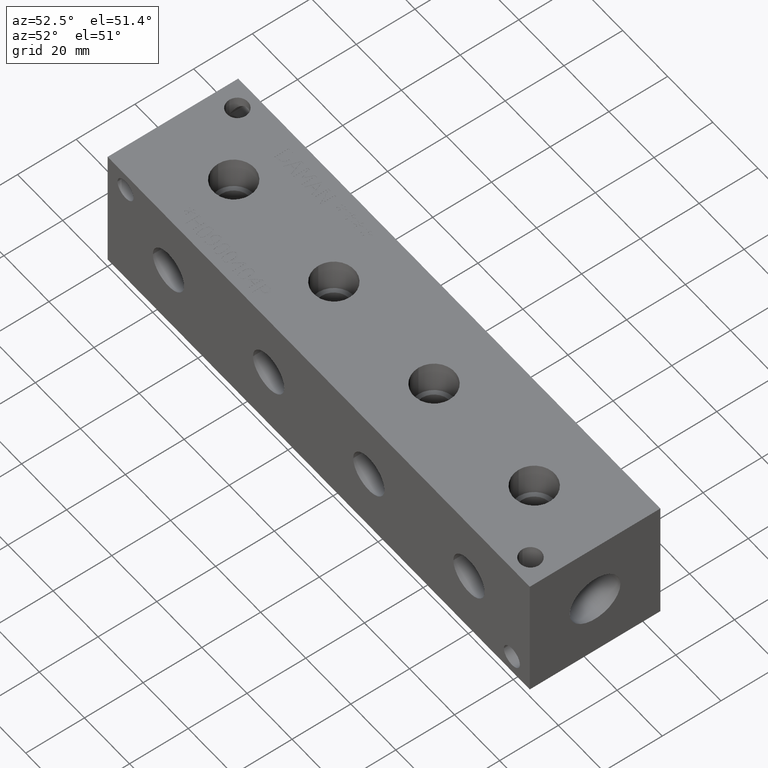
[diagram: clean part render]
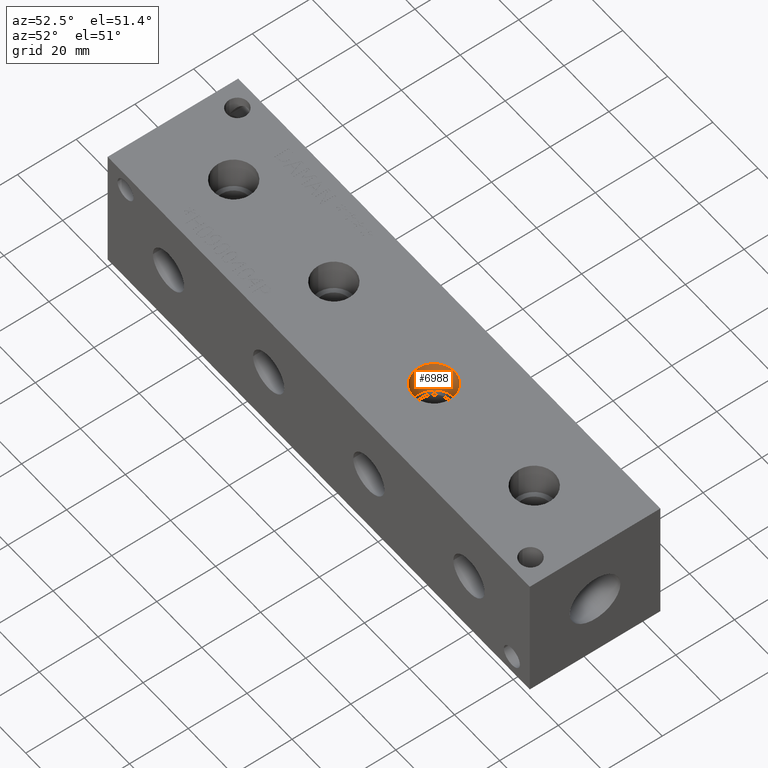
[diagram: same view with one face highlighted and labeled with its STEP entity id]
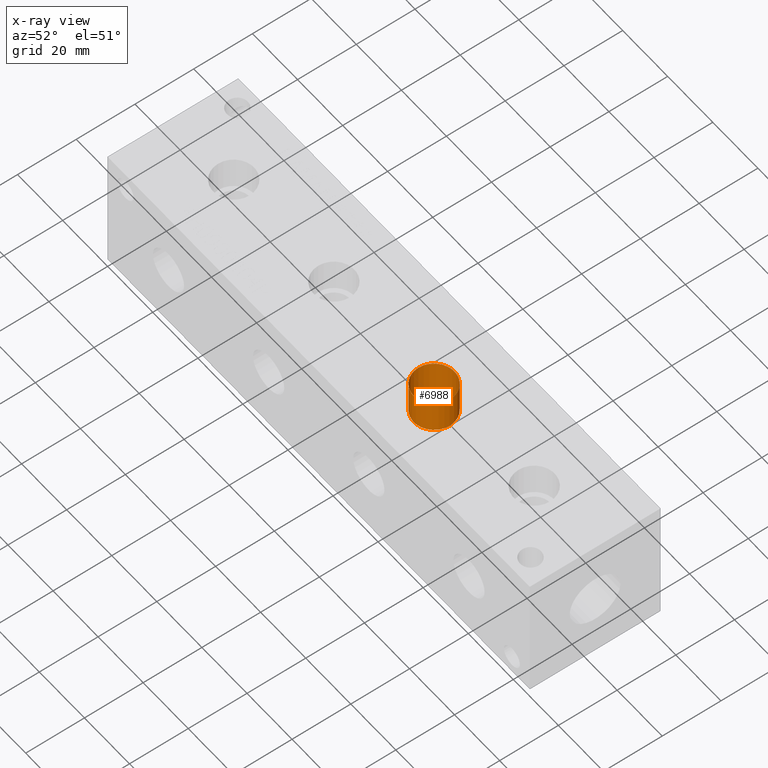
[diagram: x-ray of the same camera — body ghosted, the highlighted face saturated]
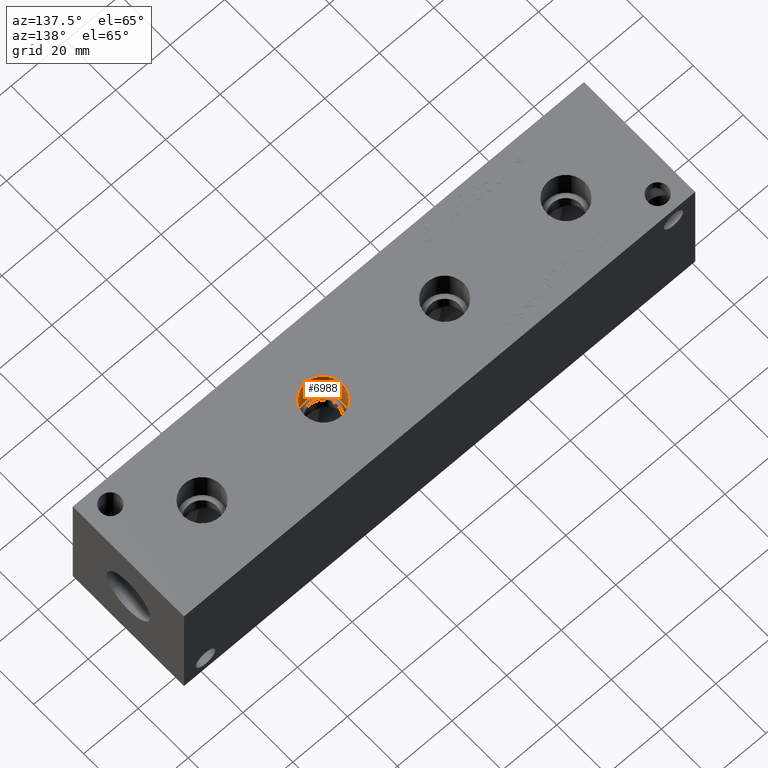
[diagram: same view with one face highlighted and labeled with its STEP entity id]
A machine part, auxiliary view. The second image highlights one B-rep face of the part: STEP entity #6988.
The next image is the same camera in x-ray: the body ghosted, the highlighted face saturated — about 0% of this face is hidden behind the body in this view.
A second angle (auxiliary view) of the same face is appended — the face is thin or edge-on in the first view.
In plain terms, the highlighted cylindrical surface (bore or boss wall) has radius 6.9342 mm, axis along (0, 0, 1).
Its self-contained STEP definition (entity closure, byte-faithful):
#43=CYLINDRICAL_SURFACE('',#7323,6.9342);
#59=CIRCLE('',#7108,6.9342);
#60=CIRCLE('',#7109,6.9342);
#95=CIRCLE('',#7320,6.9342);
#96=CIRCLE('',#7321,6.9342);
#736=FACE_OUTER_BOUND('',#1124,.T.);
#1124=EDGE_LOOP('',(#6163,#6164,#6165,#6166,#6167,#6168));
#1843=LINE('',#12010,#2542);
#2542=VECTOR('',#8646,6.9342);
#3046=VERTEX_POINT('',#10603);
#3047=VERTEX_POINT('',#10604);
#3372=VERTEX_POINT('',#12003);
#3373=VERTEX_POINT('',#12004);
#3835=EDGE_CURVE('',#3046,#3047,#59,.T.);
#3836=EDGE_CURVE('',#3047,#3046,#60,.T.);
#4321=EDGE_CURVE('',#3372,#3373,#95,.T.);
#4322=EDGE_CURVE('',#3373,#3372,#96,.T.);
#4324=EDGE_CURVE('',#3047,#3373,#1843,.T.);
#6163=ORIENTED_EDGE('',*,*,#3835,.F.);
#6164=ORIENTED_EDGE('',*,*,#3836,.F.);
#6165=ORIENTED_EDGE('',*,*,#4324,.T.);
#6166=ORIENTED_EDGE('',*,*,#4321,.F.);
#6167=ORIENTED_EDGE('',*,*,#4322,.F.);
#6168=ORIENTED_EDGE('',*,*,#4324,.F.);
#6988=ADVANCED_FACE('',(#736),#43,.F.);
#7108=AXIS2_PLACEMENT_3D('',#10605,#7816,#7817);
#7109=AXIS2_PLACEMENT_3D('',#10606,#7818,#7819);
#7320=AXIS2_PLACEMENT_3D('',#12005,#8638,#8639);
#7321=AXIS2_PLACEMENT_3D('',#12006,#8640,#8641);
#7323=AXIS2_PLACEMENT_3D('',#12009,#8644,#8645);
#7816=DIRECTION('center_axis',(0.,0.,-1.));
#7817=DIRECTION('ref_axis',(1.,0.,0.));
#7818=DIRECTION('center_axis',(0.,0.,-1.));
#7819=DIRECTION('ref_axis',(1.,0.,0.));
#8638=DIRECTION('center_axis',(0.,0.,1.));
#8639=DIRECTION('ref_axis',(1.,0.,0.));
#8640=DIRECTION('center_axis',(0.,0.,1.));
#8641=DIRECTION('ref_axis',(1.,0.,0.));
#8644=DIRECTION('center_axis',(0.,0.,1.));
#8645=DIRECTION('ref_axis',(1.,0.,0.));
#8646=DIRECTION('',(0.,0.,-1.));
#10603=CARTESIAN_POINT('',(122.809,22.225,44.45));
#10604=CARTESIAN_POINT('',(108.9406,22.225,44.45));
#10605=CARTESIAN_POINT('Origin',(115.8748,22.225,44.45));
#10606=CARTESIAN_POINT('Origin',(115.8748,22.225,44.45));
#12003=CARTESIAN_POINT('',(122.809,22.225,33.0454));
#12004=CARTESIAN_POINT('',(108.9406,22.225,33.0454));
#12005=CARTESIAN_POINT('Origin',(115.8748,22.225,33.0454));
#12006=CARTESIAN_POINT('Origin',(115.8748,22.225,33.0454));
#12009=CARTESIAN_POINT('Origin',(115.8748,22.225,38.7477));
#12010=CARTESIAN_POINT('',(108.9406,22.225,38.7477));